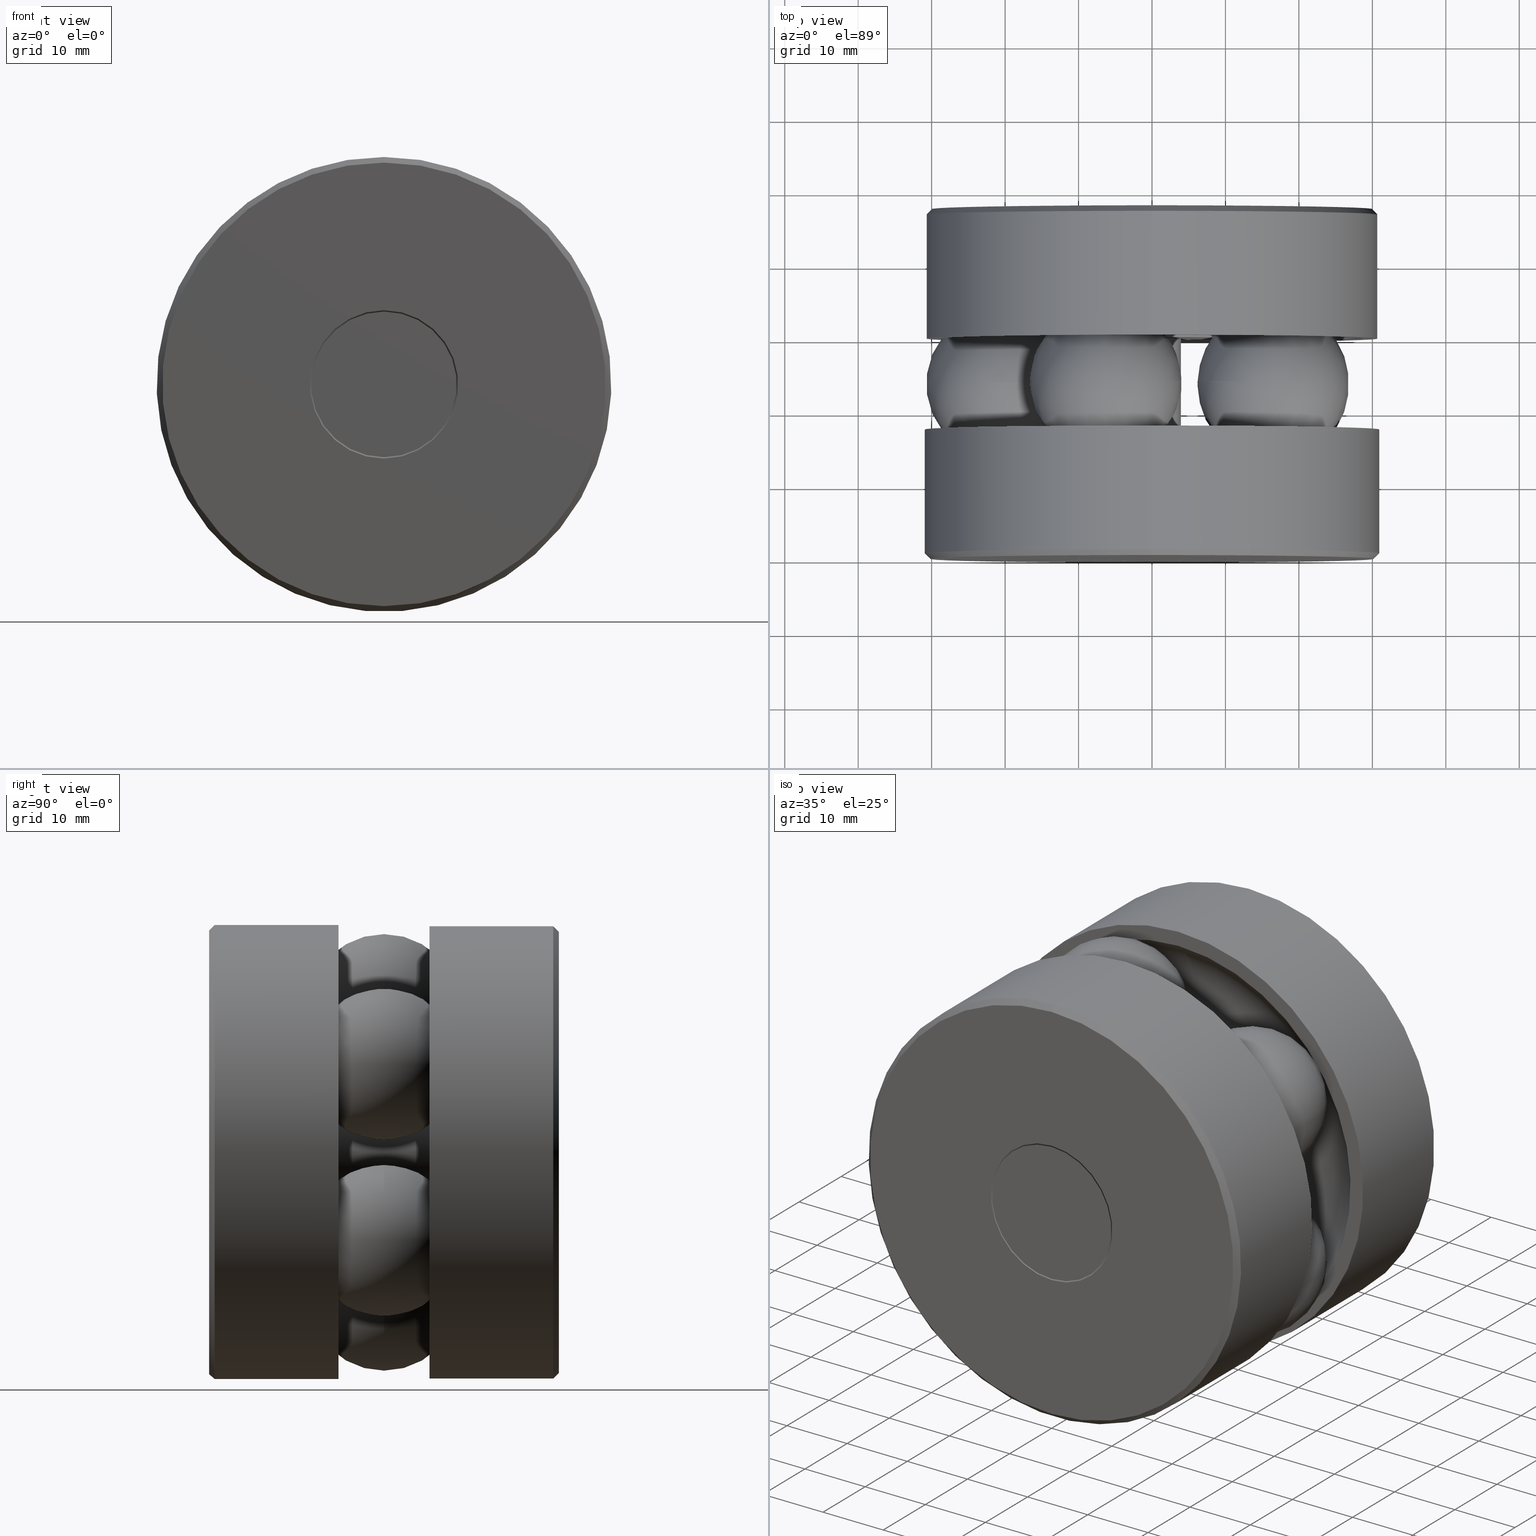
[diagram: canonical four-view strip — front | top / right | iso, engineering-drawing reading convention]
A machine part, canonical four-view strip (front | top / right | iso — engineering-drawing reading convention). The complete STEP part file that produces these views, byte-faithful:
ISO-10303-21;
HEADER;
FILE_DESCRIPTION (( 'STEP AP203' ),
    '1' );
FILE_NAME ('T-114RG_T-114RG-2007.step',
    '2016-02-04T15:34:13',
    ( '' ),
    ( '' ),
    'SwSTEP 2.0',
    'SolidWorks 2016',
    '' );
FILE_SCHEMA (( 'CONFIG_CONTROL_DESIGN' ));
ENDSEC;

DATA;
#1 = DIRECTION ( 'NONE',  ( 0.0000000000000000000, 0.0000000000000000000, 1.000000000000000000 ) ) ;
#2 = VERTEX_POINT ( 'NONE', #316 ) ;
#3 = MANIFOLD_SOLID_BREP ( 'Revolve2[1]', #539 ) ;
#4 = DIRECTION ( 'NONE',  ( 0.0000000000000000000, 0.0000000000000000000, 1.000000000000000000 ) ) ;
#5 = FACE_OUTER_BOUND ( 'NONE', #17, .T. ) ;
#6 = EDGE_LOOP ( 'NONE', ( #430 ) ) ;
#7 = EDGE_LOOP ( 'NONE', ( #245 ) ) ;
#8 = ORIENTED_EDGE ( 'NONE', *, *, #104, .T. ) ;
#9 = DIRECTION ( 'NONE',  ( 0.0000000000000000000, 0.0000000000000000000, 1.000000000000000000 ) ) ;
#10 = AXIS2_PLACEMENT_3D ( 'NONE', #218, #494, #458 ) ;
#11 = DIRECTION ( 'NONE',  ( -0.0000000000000000000, 1.000000000000000000, -0.0000000000000000000 ) ) ;
#12 = DIRECTION ( 'NONE',  ( 0.0000000000000000000, -0.0000000000000000000, -1.000000000000000000 ) ) ;
#13 = CARTESIAN_POINT ( 'NONE',  ( 0.0000000000000000000, 0.0000000000000000000, 0.0000000000000000000 ) ) ;
#14 = PERSON_AND_ORGANIZATION ( #483, #478 ) ;
#15 = CYLINDRICAL_SURFACE ( 'NONE', #488, 0.1560000000000001700 ) ;
#16 = EDGE_LOOP ( 'NONE', ( #209 ) ) ;
#17 = EDGE_LOOP ( 'NONE', ( #182 ) ) ;
#18 = ORIENTED_EDGE ( 'NONE', *, *, #459, .F. ) ;
#19 = DIRECTION ( 'NONE',  ( -0.0000000000000000000, 1.000000000000000000, -0.0000000000000000000 ) ) ;
#20 = DIRECTION ( 'NONE',  ( -0.0000000000000000000, 1.000000000000000000, -0.0000000000000000000 ) ) ;
#21 = EDGE_LOOP ( 'NONE', ( #406 ) ) ;
#22 = CARTESIAN_POINT ( 'NONE',  ( 0.0000000000000000000, 1.874999999999999800, 1.181750000000000100 ) ) ;
#23 = CC_DESIGN_PERSON_AND_ORGANIZATION_ASSIGNMENT ( #216, #513, ( #446 ) ) ;
#24 =( LENGTH_UNIT ( ) NAMED_UNIT ( * ) SI_UNIT ( $, .METRE. ) );
#25 = MECHANICAL_CONTEXT ( 'NONE', #512, 'mechanical' ) ;
#26 = VERTEX_POINT ( 'NONE', #469 ) ;
#27 = AXIS2_PLACEMENT_3D ( 'NONE', #248, #527, #291 ) ;
#28 = CIRCLE ( 'NONE', #340, 0.3974460678118633100 ) ;
#29 = ORIENTED_EDGE ( 'NONE', *, *, #432, .F. ) ;
#30 = ORIENTED_EDGE ( 'NONE', *, *, #273, .F. ) ;
#31 = PERSON_AND_ORGANIZATION_ROLE ( 'classification_officer' ) ;
#32 = ADVANCED_FACE ( 'NONE', ( #247, #148 ), #438, .T. ) ;
#33 = PERSON_AND_ORGANIZATION ( #483, #478 ) ;
#34 = CIRCLE ( 'NONE', #49, 0.1610000000000000300 ) ;
#35 = ADVANCED_FACE ( 'NONE', ( #450, #343 ), #123, .F. ) ;
#36 = CLOSED_SHELL ( 'NONE', ( #323, #442, #240, #35, #518, #515, #125, #440 ) ) ;
#37 = ORIENTED_EDGE ( 'NONE', *, *, #377, .T. ) ;
#38 = EDGE_LOOP ( 'NONE', ( #523 ) ) ;
#39 = EDGE_LOOP ( 'NONE', ( #236 ) ) ;
#40 = EDGE_CURVE ( 'NONE', #366, #366, #226, .T. ) ;
#41 = CYLINDRICAL_SURFACE ( 'NONE', #158, 0.1610000000000000300 ) ;
#42 = EDGE_LOOP ( 'NONE', ( #206 ) ) ;
#43 = ORIENTED_EDGE ( 'NONE', *, *, #186, .T. ) ;
#44 = EDGE_LOOP ( 'NONE', ( #81 ) ) ;
#45 = DIRECTION ( 'NONE',  ( 0.0000000000000000000, 0.0000000000000000000, -1.000000000000000000 ) ) ;
#46 = EDGE_LOOP ( 'NONE', ( #141 ) ) ;
#47 = DIRECTION ( 'NONE',  ( -0.0000000000000000000, 1.000000000000000000, -0.0000000000000000000 ) ) ;
#48 = DIRECTION ( 'NONE',  ( -0.0000000000000000000, 1.000000000000000000, -0.0000000000000000000 ) ) ;
#49 = AXIS2_PLACEMENT_3D ( 'NONE', #107, #380, #145 ) ;
#50 = DIRECTION ( 'NONE',  ( -0.0000000000000000000, 1.000000000000000000, -0.0000000000000000000 ) ) ;
#51 = COORDINATED_UNIVERSAL_TIME_OFFSET ( 5, 0, .BEHIND. ) ;
#52 = CIRCLE ( 'NONE', #306, 1.218750000000000000 ) ;
#53 = ORIENTED_EDGE ( 'NONE', *, *, #484, .F. ) ;
#54 = EDGE_LOOP ( 'NONE', ( #303 ) ) ;
#55 = EDGE_LOOP ( 'NONE', ( #53 ) ) ;
#56 = EDGE_LOOP ( 'NONE', ( #8 ) ) ;
#57 = DIRECTION ( 'NONE',  ( 0.0000000000000000000, 0.0000000000000000000, 1.000000000000000000 ) ) ;
#58 = SECURITY_CLASSIFICATION ( '', '', #279 ) ;
#59 = CARTESIAN_POINT ( 'NONE',  ( 0.0000000000000000000, 0.0000000000000000000, 0.0000000000000000000 ) ) ;
#60 = ORIENTED_EDGE ( 'NONE', *, *, #104, .F. ) ;
#61 = DIRECTION ( 'NONE',  ( 0.0000000000000000000, 0.0000000000000000000, 1.000000000000000000 ) ) ;
#62 = EDGE_LOOP ( 'NONE', ( #445 ) ) ;
#63 = PLANE ( 'NONE',  #213 ) ;
#64 = EDGE_LOOP ( 'NONE', ( #72 ) ) ;
#65 = AXIS2_PLACEMENT_3D ( 'NONE', #448, #487, #45 ) ;
#66 = EDGE_LOOP ( 'NONE', ( #43 ) ) ;
#67 = DIRECTION ( 'NONE',  ( 0.0000000000000000000, 0.0000000000000000000, 1.000000000000000000 ) ) ;
#68 = DIRECTION ( 'NONE',  ( 0.0000000000000000000, -1.000000000000000000, 0.0000000000000000000 ) ) ;
#69 = DIRECTION ( 'NONE',  ( 0.3090169943749582200, 0.0000000000000000000, 0.9510565162951499800 ) ) ;
#70 = CIRCLE ( 'NONE', #176, 1.211749999999999900 ) ;
#71 = EDGE_LOOP ( 'NONE', ( #355 ) ) ;
#72 = ORIENTED_EDGE ( 'NONE', *, *, #161, .F. ) ;
#73 = ORIENTED_EDGE ( 'NONE', *, *, #235, .F. ) ;
#74 = DIRECTION ( 'NONE',  ( 0.0000000000000000000, 0.0000000000000000000, 1.000000000000000000 ) ) ;
#75 = EDGE_LOOP ( 'NONE', ( #364 ) ) ;
#76 =( GEOMETRIC_REPRESENTATION_CONTEXT ( 3 ) GLOBAL_UNCERTAINTY_ASSIGNED_CONTEXT ( ( #178 ) ) GLOBAL_UNIT_ASSIGNED_CONTEXT ( ( #392, #162, #435 ) ) REPRESENTATION_CONTEXT ( 'NONE', 'WORKASPACE' ) );
#77 = CARTESIAN_POINT ( 'NONE',  ( 0.0000000000000000000, 1.875000000000000000, 0.3974460678118633100 ) ) ;
#78 = CARTESIAN_POINT ( 'NONE',  ( 0.0000000000000000000, 0.03000000000000006800, 1.218750000000000000 ) ) ;
#79 = EDGE_CURVE ( 'NONE', #461, #461, #28, .T. ) ;
#80 = FACE_OUTER_BOUND ( 'NONE', #486, .T. ) ;
#81 = ORIENTED_EDGE ( 'NONE', *, *, #299, .T. ) ;
#82 = EDGE_LOOP ( 'NONE', ( #138 ) ) ;
#83 = CLOSED_SHELL ( 'NONE', ( #477 ) ) ;
#84 = DIRECTION ( 'NONE',  ( 0.0000000000000000000, -1.000000000000000000, 0.0000000000000000000 ) ) ;
#85 = APPLICATION_CONTEXT ( 'configuration controlled 3d designs of mechanical parts and assemblies' ) ;
#86 = APPROVAL_STATUS ( 'not_yet_approved' ) ;
#87 = ADVANCED_BREP_SHAPE_REPRESENTATION ( 'T-114RG_T-114RG-2007', ( #3, #451, #121, #208, #171, #357, #294, #265, #256 ), #76 ) ;
#88 = AXIS2_PLACEMENT_3D ( 'NONE', #108, #382, #147 ) ;
#89 = ADVANCED_FACE ( 'NONE', ( #133, #238 ), #110, .T. ) ;
#90 = FACE_BOUND ( 'NONE', #391, .T. ) ;
#91 = ADVANCED_FACE ( 'NONE', ( #330, #529 ), #533, .T. ) ;
#92 = DATE_AND_TIME ( #194, #301 ) ;
#93 = FACE_BOUND ( 'NONE', #261, .T. ) ;
#94 = CC_DESIGN_PERSON_AND_ORGANIZATION_ASSIGNMENT ( #114, #31, ( #58 ) ) ;
#95 = CLOSED_SHELL ( 'NONE', ( #243 ) ) ;
#96 = EDGE_LOOP ( 'NONE', ( #462 ) ) ;
#97 = DIRECTION ( 'NONE',  ( -0.8090169943749506700, 0.0000000000000000000, -0.5877852522924684700 ) ) ;
#98 = FACE_OUTER_BOUND ( 'NONE', #457, .T. ) ;
#99 = AXIS2_PLACEMENT_3D ( 'NONE', #228, #192, #468 ) ;
#100 = DIRECTION ( 'NONE',  ( -0.0000000000000000000, 1.000000000000000000, -0.0000000000000000000 ) ) ;
#101 = PERSON_AND_ORGANIZATION ( #483, #478 ) ;
#102 = CIRCLE ( 'NONE', #88, 0.1610000000000000300 ) ;
#103 = ORIENTED_EDGE ( 'NONE', *, *, #350, .T. ) ;
#104 = EDGE_CURVE ( 'NONE', #146, #146, #322, .T. ) ;
#105 = CLOSED_SHELL ( 'NONE', ( #203 ) ) ;
#106 = DIRECTION ( 'NONE',  ( -0.0000000000000000000, 1.000000000000000000, -0.0000000000000000000 ) ) ;
#107 = CARTESIAN_POINT ( 'NONE',  ( 0.0000000000000000000, 0.2364460678118654700, 0.0000000000000000000 ) ) ;
#108 = CARTESIAN_POINT ( 'NONE',  ( 0.0000000000000000000, 0.6937500000000002000, 0.0000000000000000000 ) ) ;
#109 = VERTEX_POINT ( 'NONE', #234 ) ;
#110 = CONICAL_SURFACE ( 'NONE', #367, 0.3903749999999977500, 0.7853981633974431700 ) ;
#111 = AXIS2_PLACEMENT_3D ( 'NONE', #420, #460, #498 ) ;
#112 = PLANE ( 'NONE',  #505 ) ;
#113 = DIRECTION ( 'NONE',  ( 0.0000000000000000000, 0.0000000000000000000, 1.000000000000000000 ) ) ;
#114 = PERSON_AND_ORGANIZATION ( #483, #478 ) ;
#115 = FACE_BOUND ( 'NONE', #56, .T. ) ;
#116 = ORIENTED_EDGE ( 'NONE', *, *, #400, .T. ) ;
#117 = CARTESIAN_POINT ( 'NONE',  ( 0.0000000000000000000, -2.210274490284117400E-018, 0.3974460678118629200 ) ) ;
#118 = CC_DESIGN_DATE_AND_TIME_ASSIGNMENT ( #204, #320, ( #58 ) ) ;
#119 = APPROVAL_STATUS ( 'not_yet_approved' ) ;
#120 = AXIS2_PLACEMENT_3D ( 'NONE', #292, #48, #332 ) ;
#121 = MANIFOLD_SOLID_BREP ( 'Revolve2[3]', #36 ) ;
#122 = VERTEX_POINT ( 'NONE', #389 ) ;
#123 = CONICAL_SURFACE ( 'NONE', #290, 0.3974460678118629200, 0.7853981633974428400 ) ;
#124 = ADVANCED_FACE ( 'NONE', ( #425, #5 ), #202, .T. ) ;
#125 = ADVANCED_FACE ( 'NONE', ( #212, #98 ), #516, .F. ) ;
#126 = CALENDAR_DATE ( 2016, 4, 2 ) ;
#127 = AXIS2_PLACEMENT_3D ( 'NONE', #159, #431, #193 ) ;
#128 = CYLINDRICAL_SURFACE ( 'NONE', #10, 1.218750000000000000 ) ;
#129 = ORIENTED_EDGE ( 'NONE', *, *, #400, .F. ) ;
#130 = EDGE_CURVE ( 'NONE', #26, #26, #411, .T. ) ;
#131 = CARTESIAN_POINT ( 'NONE',  ( 0.0000000000000000000, 1.181249999999999900, 0.0000000000000000000 ) ) ;
#132 = VERTEX_POINT ( 'NONE', #22 ) ;
#133 = FACE_BOUND ( 'NONE', #271, .T. ) ;
#134 = CARTESIAN_POINT ( 'NONE',  ( 0.6500451549802728200, 0.9375000000000000000, 0.4722854502169983600 ) ) ;
#135 = AXIS2_PLACEMENT_3D ( 'NONE', #59, #220, #419 ) ;
#136 = CARTESIAN_POINT ( 'NONE',  ( 0.0000000000000000000, 1.874999999999999800, 0.0000000000000000000 ) ) ;
#137 = DIRECTION ( 'NONE',  ( 0.0000000000000000000, 0.0000000000000000000, -1.000000000000000000 ) ) ;
#138 = ORIENTED_EDGE ( 'NONE', *, *, #541, .F. ) ;
#139 = DATE_AND_TIME ( #242, #347 ) ;
#140 = FACE_OUTER_BOUND ( 'NONE', #62, .T. ) ;
#141 = ORIENTED_EDGE ( 'NONE', *, *, #130, .F. ) ;
#142 = DIRECTION ( 'NONE',  ( -0.8090169943749422300, 0.0000000000000000000, 0.5877852522924802400 ) ) ;
#143 = APPROVAL ( #86, 'UNSPECIFIED' ) ;
#144 = DIRECTION ( 'NONE',  ( 0.0000000000000000000, -1.000000000000000000, 0.0000000000000000000 ) ) ;
#145 = DIRECTION ( 'NONE',  ( 0.0000000000000000000, 0.0000000000000000000, 1.000000000000000000 ) ) ;
#146 = VERTEX_POINT ( 'NONE', #387 ) ;
#147 = DIRECTION ( 'NONE',  ( 0.0000000000000000000, 0.0000000000000000000, 1.000000000000000000 ) ) ;
#148 = FACE_BOUND ( 'NONE', #282, .T. ) ;
#149 = AXIS2_PLACEMENT_3D ( 'NONE', #369, #407, #177 ) ;
#150 = CARTESIAN_POINT ( 'NONE',  ( 0.0000000000000000000, 0.6937500000000000900, 0.0000000000000000000 ) ) ;
#151 = CARTESIAN_POINT ( 'NONE',  ( -0.4784999999999997600, 1.181249999999999900, 0.0000000000000000000 ) ) ;
#152 = ORIENTED_EDGE ( 'NONE', *, *, #432, .T. ) ;
#153 = DIRECTION ( 'NONE',  ( 0.0000000000000000000, -1.000000000000000000, 0.0000000000000000000 ) ) ;
#154 = APPROVAL_DATE_TIME ( #251, #338 ) ;
#155 = TOROIDAL_SURFACE ( 'NONE', #439, 0.8034999999999997700, 0.4062499999999999400 ) ;
#156 = EDGE_LOOP ( 'NONE', ( #60 ) ) ;
#157 = DIRECTION ( 'NONE',  ( -0.0000000000000000000, 1.000000000000000000, -0.0000000000000000000 ) ) ;
#158 = AXIS2_PLACEMENT_3D ( 'NONE', #230, #504, #113 ) ;
#159 = CARTESIAN_POINT ( 'NONE',  ( 0.0000000000000000000, 0.2343750000000001100, 0.0000000000000000000 ) ) ;
#160 = CARTESIAN_POINT ( 'NONE',  ( 0.0000000000000000000, 0.6937500000000002000, 0.1610000000000000300 ) ) ;
#161 = EDGE_CURVE ( 'NONE', #449, #449, #502, .T. ) ;
#162 =( NAMED_UNIT ( * ) PLANE_ANGLE_UNIT ( ) SI_UNIT ( $, .RADIAN. ) );
#163 = CIRCLE ( 'NONE', #127, 0.1560000000000000300 ) ;
#164 = ORIENTED_EDGE ( 'NONE', *, *, #377, .F. ) ;
#165 = PERSON_AND_ORGANIZATION_ROLE ( 'creator' ) ;
#166 = ADVANCED_FACE ( 'NONE', ( #293, #395 ), #180, .T. ) ;
#167 = EDGE_LOOP ( 'NONE', ( #337 ) ) ;
#168 = APPROVAL_PERSON_ORGANIZATION ( #268, #338, #393 ) ;
#169 = ADVANCED_FACE ( 'NONE', ( #308, #90 ), #370, .T. ) ;
#170 = FACE_OUTER_BOUND ( 'NONE', #418, .T. ) ;
#171 = MANIFOLD_SOLID_BREP ( 'BALLS[1]', #105 ) ;
#172 = ORIENTED_EDGE ( 'NONE', *, *, #509, .F. ) ;
#173 = CC_DESIGN_APPROVAL ( #143, ( #58 ) ) ;
#174 = EDGE_LOOP ( 'NONE', ( #30 ) ) ;
#175 = DIRECTION ( 'NONE',  ( 0.0000000000000000000, 0.0000000000000000000, 1.000000000000000000 ) ) ;
#176 = AXIS2_PLACEMENT_3D ( 'NONE', #295, #50, #333 ) ;
#177 = DIRECTION ( 'NONE',  ( 0.0000000000000000000, 0.0000000000000000000, 1.000000000000000000 ) ) ;
#178 = UNCERTAINTY_MEASURE_WITH_UNIT (LENGTH_MEASURE( 1.000000000000000100E-005 ), #392, 'distance_accuracy_value', 'NONE');
#179 = DIRECTION ( 'NONE',  ( 0.3090169943749447300, 0.0000000000000000000, -0.9510565162951544200 ) ) ;
#180 = CONICAL_SURFACE ( 'NONE', #65, 0.1560000000000000300, 0.7853981633974425100 ) ;
#181 = DIRECTION ( 'NONE',  ( 0.0000000000000000000, 0.0000000000000000000, 1.000000000000000000 ) ) ;
#182 = ORIENTED_EDGE ( 'NONE', *, *, #207, .F. ) ;
#183 = DIRECTION ( 'NONE',  ( -0.0000000000000000000, 1.000000000000000000, -0.0000000000000000000 ) ) ;
#184 = CARTESIAN_POINT ( 'NONE',  ( 0.6500451549802659400, 0.9375000000000000000, -0.4722854502170077400 ) ) ;
#185 = CIRCLE ( 'NONE', #397, 0.3903749999999977500 ) ;
#186 = EDGE_CURVE ( 'NONE', #342, #342, #283, .T. ) ;
#187 = EDGE_LOOP ( 'NONE', ( #349 ) ) ;
#188 = DIRECTION ( 'NONE',  ( 0.0000000000000000000, -0.0000000000000000000, -1.000000000000000000 ) ) ;
#189 = DIRECTION ( 'NONE',  ( 0.0000000000000000000, 0.0000000000000000000, 1.000000000000000000 ) ) ;
#190 = CARTESIAN_POINT ( 'NONE',  ( -0.2482951549802788500, 0.9375000000000000000, -0.7641739108431528900 ) ) ;
#191 = SPHERICAL_SURFACE ( 'NONE', #225, 0.4062500000000000600 ) ;
#192 = DIRECTION ( 'NONE',  ( -0.0000000000000000000, 1.000000000000000000, 0.0000000000000000000 ) ) ;
#193 = DIRECTION ( 'NONE',  ( 0.0000000000000000000, 0.0000000000000000000, 1.000000000000000000 ) ) ;
#194 = CALENDAR_DATE ( 2016, 4, 2 ) ;
#195 = FACE_OUTER_BOUND ( 'NONE', #46, .T. ) ;
#196 = EDGE_LOOP ( 'NONE', ( #172 ) ) ;
#197 = CARTESIAN_POINT ( 'NONE',  ( 0.0000000000000000000, 0.6937499999999999800, 1.128499999999999600 ) ) ;
#198 = CC_DESIGN_SECURITY_CLASSIFICATION ( #58, ( #446 ) ) ;
#199 = APPROVAL_STATUS ( 'not_yet_approved' ) ;
#200 = AXIS2_PLACEMENT_3D ( 'NONE', #134, #530, #97 ) ;
#201 = ADVANCED_FACE ( 'NONE', ( ), #479, .T. ) ;
#202 = CYLINDRICAL_SURFACE ( 'NONE', #526, 1.211749999999999900 ) ;
#203 = ADVANCED_FACE ( 'NONE', ( ), #191, .T. ) ;
#204 = DATE_AND_TIME ( #312, #415 ) ;
#205 = FACE_OUTER_BOUND ( 'NONE', #55, .T. ) ;
#206 = ORIENTED_EDGE ( 'NONE', *, *, #207, .T. ) ;
#207 = EDGE_CURVE ( 'NONE', #237, #237, #70, .T. ) ;
#208 = MANIFOLD_SOLID_BREP ( 'Revolve3', #95 ) ;
#209 = ORIENTED_EDGE ( 'NONE', *, *, #273, .T. ) ;
#210 = CARTESIAN_POINT ( 'NONE',  ( -0.3974460678118629200, -9.670517702963630200E-017, 0.0000000000000000000 ) ) ;
#211 = VERTEX_POINT ( 'NONE', #471 ) ;
#212 = FACE_OUTER_BOUND ( 'NONE', #473, .T. ) ;
#213 = AXIS2_PLACEMENT_3D ( 'NONE', #341, #422, #188 ) ;
#214 = DIRECTION ( 'NONE',  ( 0.0000000000000000000, -0.0000000000000000000, -1.000000000000000000 ) ) ;
#215 = PRODUCT_DEFINITION_SHAPE ( 'NONE', 'NONE',  #313 ) ;
#216 = PERSON_AND_ORGANIZATION ( #483, #478 ) ;
#217 = FACE_BOUND ( 'NONE', #44, .T. ) ;
#218 = CARTESIAN_POINT ( 'NONE',  ( 0.0000000000000000000, 0.0000000000000000000, 0.0000000000000000000 ) ) ;
#219 = ORIENTED_EDGE ( 'NONE', *, *, #79, .F. ) ;
#220 = DIRECTION ( 'NONE',  ( -0.0000000000000000000, 1.000000000000000000, -0.0000000000000000000 ) ) ;
#221 = PRODUCT_RELATED_PRODUCT_CATEGORY ( 'detail', '', ( #519 ) ) ;
#222 = CARTESIAN_POINT ( 'NONE',  ( 0.0000000000000000000, 1.875000000000000000, 0.0000000000000000000 ) ) ;
#223 = PLANE ( 'NONE',  #269 ) ;
#224 = VERTEX_POINT ( 'NONE', #117 ) ;
#225 = AXIS2_PLACEMENT_3D ( 'NONE', #250, #412, #179 ) ;
#226 = CIRCLE ( 'NONE', #317, 0.1610000000000003100 ) ;
#227 = DIRECTION ( 'NONE',  ( 0.0000000000000000000, 0.0000000000000000000, 1.000000000000000000 ) ) ;
#228 = CARTESIAN_POINT ( 'NONE',  ( -0.4784999999999997000, 0.6937500000000002000, 0.0000000000000000000 ) ) ;
#229 = LOCAL_TIME ( 10, 34, 13.00000000000000000, #334 ) ;
#230 = CARTESIAN_POINT ( 'NONE',  ( 0.0000000000000000000, 0.0000000000000000000, 0.0000000000000000000 ) ) ;
#231 = CIRCLE ( 'NONE', #517, 0.3974460678118629200 ) ;
#232 = EDGE_LOOP ( 'NONE', ( #103 ) ) ;
#233 = CARTESIAN_POINT ( 'NONE',  ( 0.0000000000000000000, 1.181249999999999900, 1.128499999999999600 ) ) ;
#234 = CARTESIAN_POINT ( 'NONE',  ( 0.0000000000000000000, 0.0000000000000000000, 0.3903749999999974200 ) ) ;
#235 = EDGE_CURVE ( 'NONE', #132, #132, #385, .T. ) ;
#236 = ORIENTED_EDGE ( 'NONE', *, *, #40, .F. ) ;
#237 = VERTEX_POINT ( 'NONE', #274 ) ;
#238 = FACE_OUTER_BOUND ( 'NONE', #315, .T. ) ;
#239 = PERSON_AND_ORGANIZATION_ROLE ( 'creator' ) ;
#240 = ADVANCED_FACE ( 'NONE', ( #270, #373 ), #371, .T. ) ;
#241 = AXIS2_PLACEMENT_3D ( 'NONE', #150, #424, #189 ) ;
#242 = CALENDAR_DATE ( 2016, 4, 2 ) ;
#243 = ADVANCED_FACE ( 'NONE', ( ), #363, .T. ) ;
#244 = CIRCLE ( 'NONE', #463, 1.188750000000000000 ) ;
#245 = ORIENTED_EDGE ( 'NONE', *, *, #299, .F. ) ;
#246 = EDGE_CURVE ( 'NONE', #2, #2, #52, .T. ) ;
#247 = FACE_OUTER_BOUND ( 'NONE', #42, .T. ) ;
#248 = CARTESIAN_POINT ( 'NONE',  ( 0.0000000000000000000, 1.181249999999999900, 0.0000000000000000000 ) ) ;
#249 = AXIS2_PLACEMENT_3D ( 'NONE', #136, #413, #181 ) ;
#250 = CARTESIAN_POINT ( 'NONE',  ( -0.2482951549802680800, 0.9375000000000000000, 0.7641739108431565600 ) ) ;
#251 = DATE_AND_TIME ( #362, #464 ) ;
#252 = FACE_OUTER_BOUND ( 'NONE', #64, .T. ) ;
#253 = CARTESIAN_POINT ( 'NONE',  ( 0.0000000000000000000, 1.181249999999999900, 0.0000000000000000000 ) ) ;
#254 = EDGE_LOOP ( 'NONE', ( #467 ) ) ;
#255 = CARTESIAN_POINT ( 'NONE',  ( 0.0000000000000000000, 0.03000000000000006800, 0.0000000000000000000 ) ) ;
#256 = AXIS2_PLACEMENT_3D ( 'NONE', #311, #353, #278 ) ;
#257 = CARTESIAN_POINT ( 'NONE',  ( 0.0000000000000000000, -1.912000795689885100E-016, 0.0000000000000000000 ) ) ;
#258 = CARTESIAN_POINT ( 'NONE',  ( 0.0000000000000000000, -2.210274490284117400E-018, 0.0000000000000000000 ) ) ;
#259 = AXIS2_PLACEMENT_3D ( 'NONE', #262, #68, #525 ) ;
#260 = FACE_OUTER_BOUND ( 'NONE', #38, .T. ) ;
#261 = EDGE_LOOP ( 'NONE', ( #29 ) ) ;
#262 = CARTESIAN_POINT ( 'NONE',  ( 0.0000000000000000000, 1.874999999999999800, 0.0000000000000000000 ) ) ;
#263 = DIRECTION ( 'NONE',  ( 0.0000000000000000000, 0.0000000000000000000, 1.000000000000000000 ) ) ;
#264 = DIRECTION ( 'NONE',  ( -0.0000000000000000000, 1.000000000000000000, 0.0000000000000000000 ) ) ;
#265 = MANIFOLD_SOLID_BREP ( 'BALLS[4]', #83 ) ;
#266 = DIRECTION ( 'NONE',  ( -0.0000000000000000000, 1.000000000000000000, -0.0000000000000000000 ) ) ;
#267 = CARTESIAN_POINT ( 'NONE',  ( 0.0000000000000000000, 1.875000000000000000, 0.0000000000000000000 ) ) ;
#268 = PERSON_AND_ORGANIZATION ( #483, #478 ) ;
#269 = AXIS2_PLACEMENT_3D ( 'NONE', #222, #264, #4 ) ;
#270 = FACE_BOUND ( 'NONE', #254, .T. ) ;
#271 = EDGE_LOOP ( 'NONE', ( #404 ) ) ;
#272 = CARTESIAN_POINT ( 'NONE',  ( 0.0000000000000000000, 1.638553932188134800, 0.1610000000000003100 ) ) ;
#273 = EDGE_CURVE ( 'NONE', #437, #437, #490, .T. ) ;
#274 = CARTESIAN_POINT ( 'NONE',  ( 0.0000000000000000000, 1.844999999999999300, 1.211749999999999900 ) ) ;
#275 = CARTESIAN_POINT ( 'NONE',  ( 0.0000000000000000000, 0.2343750000000001100, 0.1560000000000000300 ) ) ;
#276 = FACE_OUTER_BOUND ( 'NONE', #481, .T. ) ;
#277 = ORIENTED_EDGE ( 'NONE', *, *, #246, .T. ) ;
#278 = DIRECTION ( 'NONE',  ( 1.000000000000000000, 0.0000000000000000000, 0.0000000000000000000 ) ) ;
#279 = SECURITY_CLASSIFICATION_LEVEL ( 'unclassified' ) ;
#280 = DIRECTION ( 'NONE',  ( -0.0000000000000000000, 1.000000000000000000, -0.0000000000000000000 ) ) ;
#281 = ADVANCED_FACE ( 'NONE', ( #170, #252 ), #155, .F. ) ;
#282 = EDGE_LOOP ( 'NONE', ( #73 ) ) ;
#283 = CIRCLE ( 'NONE', #120, 1.211749999999999900 ) ;
#284 = EDGE_LOOP ( 'NONE', ( #164 ) ) ;
#285 = ADVANCED_FACE ( 'NONE', ( #348, #466 ), #15, .T. ) ;
#286 = CC_DESIGN_PERSON_AND_ORGANIZATION_ASSIGNMENT ( #372, #319, ( #519 ) ) ;
#287 = DIMENSIONAL_EXPONENTS ( 1.000000000000000000, 0.0000000000000000000, 0.0000000000000000000, 0.0000000000000000000, 0.0000000000000000000, 0.0000000000000000000, 0.0000000000000000000 ) ;
#288 = SPHERICAL_SURFACE ( 'NONE', #454, 0.4062500000000000600 ) ;
#289 = ORIENTED_EDGE ( 'NONE', *, *, #130, .T. ) ;
#290 = AXIS2_PLACEMENT_3D ( 'NONE', #398, #144, #137 ) ;
#291 = DIRECTION ( 'NONE',  ( 0.0000000000000000000, 0.0000000000000000000, 1.000000000000000000 ) ) ;
#292 = CARTESIAN_POINT ( 'NONE',  ( 0.0000000000000000000, 1.181249999999999900, 0.0000000000000000000 ) ) ;
#293 = FACE_OUTER_BOUND ( 'NONE', #96, .T. ) ;
#294 = MANIFOLD_SOLID_BREP ( 'BALLS[3]', #510 ) ;
#295 = CARTESIAN_POINT ( 'NONE',  ( 0.0000000000000000000, 1.844999999999999300, 0.0000000000000000000 ) ) ;
#296 = AXIS2_PLACEMENT_3D ( 'NONE', #501, #266, #9 ) ;
#297 = DIRECTION ( 'NONE',  ( 1.000000000000000000, 0.0000000000000000000, 0.0000000000000000000 ) ) ;
#298 = DIRECTION ( 'NONE',  ( 0.0000000000000000000, 0.0000000000000000000, 1.000000000000000000 ) ) ;
#299 = EDGE_CURVE ( 'NONE', #329, #329, #244, .T. ) ;
#300 = DIRECTION ( 'NONE',  ( 0.0000000000000000000, 0.0000000000000000000, 1.000000000000000000 ) ) ;
#301 = LOCAL_TIME ( 10, 34, 13.00000000000000000, #402 ) ;
#302 = FACE_OUTER_BOUND ( 'NONE', #381, .T. ) ;
#303 = ORIENTED_EDGE ( 'NONE', *, *, #186, .F. ) ;
#304 = DIRECTION ( 'NONE',  ( 0.0000000000000000000, 0.0000000000000000000, 1.000000000000000000 ) ) ;
#305 = DIRECTION ( 'NONE',  ( -0.0000000000000000000, 1.000000000000000000, -0.0000000000000000000 ) ) ;
#306 = AXIS2_PLACEMENT_3D ( 'NONE', #414, #183, #456 ) ;
#307 = DIRECTION ( 'NONE',  ( -0.0000000000000000000, 1.000000000000000000, 0.0000000000000000000 ) ) ;
#308 = FACE_OUTER_BOUND ( 'NONE', #21, .T. ) ;
#309 = DIRECTION ( 'NONE',  ( 0.0000000000000000000, 0.0000000000000000000, 1.000000000000000000 ) ) ;
#310 = DIRECTION ( 'NONE',  ( -0.0000000000000000000, 1.000000000000000000, -0.0000000000000000000 ) ) ;
#311 = CARTESIAN_POINT ( 'NONE',  ( 0.0000000000000000000, 0.0000000000000000000, 0.0000000000000000000 ) ) ;
#312 = CALENDAR_DATE ( 2016, 4, 2 ) ;
#313 = PRODUCT_DEFINITION ( 'UNKNOWN', '', #446, #441 ) ;
#314 = CIRCLE ( 'NONE', #241, 0.4784999999999998100 ) ;
#315 = EDGE_LOOP ( 'NONE', ( #18 ) ) ;
#316 = CARTESIAN_POINT ( 'NONE',  ( 0.0000000000000000000, 0.6937499999999999800, 1.218750000000000000 ) ) ;
#317 = AXIS2_PLACEMENT_3D ( 'NONE', #434, #20, #1 ) ;
#318 = CARTESIAN_POINT ( 'NONE',  ( 0.0000000000000000000, 1.875000000000000000, 0.0000000000000000000 ) ) ;
#319 = PERSON_AND_ORGANIZATION_ROLE ( 'design_owner' ) ;
#320 = DATE_TIME_ROLE ( 'classification_date' ) ;
#321 = VERTEX_POINT ( 'NONE', #197 ) ;
#322 = CIRCLE ( 'NONE', #421, 0.1610000000000001400 ) ;
#323 = ADVANCED_FACE ( 'NONE', ( #455, #140 ), #128, .T. ) ;
#324 = ADVANCED_FACE ( 'NONE', ( ), #538, .T. ) ;
#325 = PERSON_AND_ORGANIZATION ( #483, #478 ) ;
#326 = FACE_OUTER_BOUND ( 'NONE', #187, .T. ) ;
#327 = EDGE_CURVE ( 'NONE', #224, #224, #231, .T. ) ;
#328 = EDGE_LOOP ( 'NONE', ( #499 ) ) ;
#329 = VERTEX_POINT ( 'NONE', #352 ) ;
#330 = FACE_BOUND ( 'NONE', #75, .T. ) ;
#331 = AXIS2_PLACEMENT_3D ( 'NONE', #210, #452, #214 ) ;
#332 = DIRECTION ( 'NONE',  ( 0.0000000000000000000, 0.0000000000000000000, 1.000000000000000000 ) ) ;
#333 = DIRECTION ( 'NONE',  ( 0.0000000000000000000, 0.0000000000000000000, 1.000000000000000000 ) ) ;
#334 = COORDINATED_UNIVERSAL_TIME_OFFSET ( 5, 0, .BEHIND. ) ;
#335 = FACE_OUTER_BOUND ( 'NONE', #71, .T. ) ;
#336 = CARTESIAN_POINT ( 'NONE',  ( 0.0000000000000000000, 0.0000000000000000000, 0.0000000000000000000 ) ) ;
#337 = ORIENTED_EDGE ( 'NONE', *, *, #327, .F. ) ;
#338 = APPROVAL ( #119, 'UNSPECIFIED' ) ;
#339 = CARTESIAN_POINT ( 'NONE',  ( 0.0000000000000000000, 0.0000000000000000000, 0.0000000000000000000 ) ) ;
#340 = AXIS2_PLACEMENT_3D ( 'NONE', #318, #47, #61 ) ;
#341 = CARTESIAN_POINT ( 'NONE',  ( -0.3903749999999974200, 0.0000000000000000000, 0.0000000000000000000 ) ) ;
#342 = VERTEX_POINT ( 'NONE', #507 ) ;
#343 = FACE_OUTER_BOUND ( 'NONE', #167, .T. ) ;
#344 = PLANE ( 'NONE',  #374 ) ;
#345 = CARTESIAN_POINT ( 'NONE',  ( 0.0000000000000000000, 0.03000000000000006800, 0.0000000000000000000 ) ) ;
#346 = AXIS2_PLACEMENT_3D ( 'NONE', #345, #305, #227 ) ;
#347 = LOCAL_TIME ( 10, 34, 13.00000000000000000, #453 ) ;
#348 = FACE_OUTER_BOUND ( 'NONE', #328, .T. ) ;
#349 = ORIENTED_EDGE ( 'NONE', *, *, #459, .T. ) ;
#350 = EDGE_CURVE ( 'NONE', #122, #122, #34, .T. ) ;
#351 = CARTESIAN_POINT ( 'NONE',  ( 0.0000000000000000000, 1.875000000000000000, 0.0000000000000000000 ) ) ;
#352 = CARTESIAN_POINT ( 'NONE',  ( 0.0000000000000000000, -1.912000795689885100E-016, 1.188750000000000000 ) ) ;
#353 = DIRECTION ( 'NONE',  ( 0.0000000000000000000, 0.0000000000000000000, 1.000000000000000000 ) ) ;
#354 = SHAPE_DEFINITION_REPRESENTATION ( #215, #87 ) ;
#355 = ORIENTED_EDGE ( 'NONE', *, *, #79, .T. ) ;
#356 = APPLICATION_PROTOCOL_DEFINITION ( 'international standard', 'config_control_design', 1994, #85 ) ;
#357 = MANIFOLD_SOLID_BREP ( 'BALLS[2]', #375 ) ;
#358 = APPROVAL_ROLE ( '' ) ;
#359 = AXIS2_PLACEMENT_3D ( 'NONE', #532, #534, #297 ) ;
#360 = ADVANCED_FACE ( 'NONE', ( #429, #444 ), #521, .F. ) ;
#361 = ADVANCED_FACE ( 'NONE', ( #335, #416 ), #508, .F. ) ;
#362 = CALENDAR_DATE ( 2016, 4, 2 ) ;
#363 = SPHERICAL_SURFACE ( 'NONE', #359, 0.4062500000000000600 ) ;
#364 = ORIENTED_EDGE ( 'NONE', *, *, #161, .T. ) ;
#365 = CC_DESIGN_APPROVAL ( #338, ( #313 ) ) ;
#366 = VERTEX_POINT ( 'NONE', #272 ) ;
#367 = AXIS2_PLACEMENT_3D ( 'NONE', #351, #106, #492 ) ;
#368 = CLOSED_SHELL ( 'NONE', ( #361, #360, #480, #281, #91, #124, #32, #169 ) ) ;
#369 = CARTESIAN_POINT ( 'NONE',  ( -0.3974460678118633100, 1.875000000000000000, 0.0000000000000000000 ) ) ;
#370 = PLANE ( 'NONE',  #149 ) ;
#371 = PLANE ( 'NONE',  #331 ) ;
#372 = PERSON_AND_ORGANIZATION ( #483, #478 ) ;
#373 = FACE_OUTER_BOUND ( 'NONE', #7, .T. ) ;
#374 = AXIS2_PLACEMENT_3D ( 'NONE', #383, #307, #67 ) ;
#375 = CLOSED_SHELL ( 'NONE', ( #201 ) ) ;
#376 = DIRECTION ( 'NONE',  ( 0.0000000000000000000, 0.0000000000000000000, 1.000000000000000000 ) ) ;
#377 = EDGE_CURVE ( 'NONE', #528, #528, #102, .T. ) ;
#378 = DIRECTION ( 'NONE',  ( 0.5877852522924802400, -0.0000000000000000000, 0.8090169943749422300 ) ) ;
#379 = CIRCLE ( 'NONE', #482, 0.3903749999999974200 ) ;
#380 = DIRECTION ( 'NONE',  ( -0.0000000000000000000, 1.000000000000000000, -0.0000000000000000000 ) ) ;
#381 = EDGE_LOOP ( 'NONE', ( #277 ) ) ;
#382 = DIRECTION ( 'NONE',  ( -0.0000000000000000000, 1.000000000000000000, -0.0000000000000000000 ) ) ;
#383 = CARTESIAN_POINT ( 'NONE',  ( -1.218750000000000000, 0.6937499999999999800, 0.0000000000000000000 ) ) ;
#384 = AXIS2_PLACEMENT_3D ( 'NONE', #255, #536, #298 ) ;
#385 = CIRCLE ( 'NONE', #249, 1.181750000000000100 ) ;
#386 = CARTESIAN_POINT ( 'NONE',  ( 0.0000000000000000000, 1.640625000000000200, 0.0000000000000000000 ) ) ;
#387 = CARTESIAN_POINT ( 'NONE',  ( 0.0000000000000000000, 1.181249999999999900, 0.1610000000000001400 ) ) ;
#388 = CC_DESIGN_PERSON_AND_ORGANIZATION_ASSIGNMENT ( #33, #165, ( #313 ) ) ;
#389 = CARTESIAN_POINT ( 'NONE',  ( 0.0000000000000000000, 0.2364460678118654700, 0.1610000000000000300 ) ) ;
#390 = FACE_OUTER_BOUND ( 'NONE', #174, .T. ) ;
#391 = EDGE_LOOP ( 'NONE', ( #219 ) ) ;
#392 =( CONVERSION_BASED_UNIT ( 'INCH', #394 ) LENGTH_UNIT ( ) NAMED_UNIT ( #287 ) );
#393 = APPROVAL_ROLE ( '' ) ;
#394 = LENGTH_MEASURE_WITH_UNIT ( LENGTH_MEASURE( 0.02539999999999999900 ), #24 );
#395 = FACE_BOUND ( 'NONE', #82, .T. ) ;
#396 = ADVANCED_FACE ( 'NONE', ( #205 ), #63, .T. ) ;
#397 = AXIS2_PLACEMENT_3D ( 'NONE', #267, #11, #309 ) ;
#398 = CARTESIAN_POINT ( 'NONE',  ( 0.0000000000000000000, -2.210274490284117400E-018, 0.0000000000000000000 ) ) ;
#399 = ADVANCED_FACE ( 'NONE', ( #326 ), #223, .T. ) ;
#400 = EDGE_CURVE ( 'NONE', #423, #423, #314, .T. ) ;
#401 = DIRECTION ( 'NONE',  ( 0.0000000000000000000, 0.0000000000000000000, 1.000000000000000000 ) ) ;
#402 = COORDINATED_UNIVERSAL_TIME_OFFSET ( 5, 0, .BEHIND. ) ;
#403 = CIRCLE ( 'NONE', #296, 1.128499999999999600 ) ;
#404 = ORIENTED_EDGE ( 'NONE', *, *, #509, .T. ) ;
#405 = DIRECTION ( 'NONE',  ( -0.0000000000000000000, 1.000000000000000000, -0.0000000000000000000 ) ) ;
#406 = ORIENTED_EDGE ( 'NONE', *, *, #235, .T. ) ;
#407 = DIRECTION ( 'NONE',  ( -0.0000000000000000000, 1.000000000000000000, 0.0000000000000000000 ) ) ;
#408 = VERTEX_POINT ( 'NONE', #275 ) ;
#409 = AXIS2_PLACEMENT_3D ( 'NONE', #184, #378, #142 ) ;
#410 = DIRECTION ( 'NONE',  ( 0.0000000000000000000, 0.0000000000000000000, 1.000000000000000000 ) ) ;
#411 = CIRCLE ( 'NONE', #500, 0.4784999999999997000 ) ;
#412 = DIRECTION ( 'NONE',  ( -0.9510565162951544200, 0.0000000000000000000, -0.3090169943749447300 ) ) ;
#413 = DIRECTION ( 'NONE',  ( -0.0000000000000000000, 1.000000000000000000, -0.0000000000000000000 ) ) ;
#414 = CARTESIAN_POINT ( 'NONE',  ( 0.0000000000000000000, 0.6937499999999999800, 0.0000000000000000000 ) ) ;
#415 = LOCAL_TIME ( 10, 34, 13.00000000000000000, #520 ) ;
#416 = FACE_BOUND ( 'NONE', #39, .T. ) ;
#417 = CC_DESIGN_DATE_AND_TIME_ASSIGNMENT ( #139, #436, ( #313 ) ) ;
#418 = EDGE_LOOP ( 'NONE', ( #289 ) ) ;
#419 = DIRECTION ( 'NONE',  ( 0.0000000000000000000, 0.0000000000000000000, 1.000000000000000000 ) ) ;
#420 = CARTESIAN_POINT ( 'NONE',  ( 0.0000000000000000000, 1.638553932188134800, 0.0000000000000000000 ) ) ;
#421 = AXIS2_PLACEMENT_3D ( 'NONE', #253, #19, #410 ) ;
#422 = DIRECTION ( 'NONE',  ( 0.0000000000000000000, -1.000000000000000000, 0.0000000000000000000 ) ) ;
#423 = VERTEX_POINT ( 'NONE', #433 ) ;
#424 = DIRECTION ( 'NONE',  ( -0.0000000000000000000, 1.000000000000000000, -0.0000000000000000000 ) ) ;
#425 = FACE_OUTER_BOUND ( 'NONE', #66, .T. ) ;
#426 = DIRECTION ( 'NONE',  ( 0.0000000000000000000, -0.0000000000000000000, -1.000000000000000000 ) ) ;
#427 = DIRECTION ( 'NONE',  ( 0.0000000000000000000, 0.0000000000000000000, 1.000000000000000000 ) ) ;
#428 = APPROVAL_DATE_TIME ( #537, #470 ) ;
#429 = FACE_OUTER_BOUND ( 'NONE', #6, .T. ) ;
#430 = ORIENTED_EDGE ( 'NONE', *, *, #40, .T. ) ;
#431 = DIRECTION ( 'NONE',  ( -0.0000000000000000000, 1.000000000000000000, -0.0000000000000000000 ) ) ;
#432 = EDGE_CURVE ( 'NONE', #321, #321, #403, .T. ) ;
#433 = CARTESIAN_POINT ( 'NONE',  ( 0.0000000000000000000, 0.6937500000000000900, 0.4784999999999998100 ) ) ;
#434 = CARTESIAN_POINT ( 'NONE',  ( 0.0000000000000000000, 1.638553932188134800, 0.0000000000000000000 ) ) ;
#435 =( NAMED_UNIT ( * ) SI_UNIT ( $, .STERADIAN. ) SOLID_ANGLE_UNIT ( ) );
#436 = DATE_TIME_ROLE ( 'creation_date' ) ;
#437 = VERTEX_POINT ( 'NONE', #78 ) ;
#438 = CONICAL_SURFACE ( 'NONE', #259, 1.181750000000000100, 0.7853981633974391800 ) ;
#439 = AXIS2_PLACEMENT_3D ( 'NONE', #493, #491, #57 ) ;
#440 = ADVANCED_FACE ( 'NONE', ( #302, #93 ), #344, .T. ) ;
#441 = DESIGN_CONTEXT ( 'detailed design', #85, 'design' ) ;
#442 = ADVANCED_FACE ( 'NONE', ( #217, #390 ), #485, .T. ) ;
#443 = APPROVAL_PERSON_ORGANIZATION ( #14, #470, #476 ) ;
#444 = FACE_OUTER_BOUND ( 'NONE', #156, .T. ) ;
#445 = ORIENTED_EDGE ( 'NONE', *, *, #246, .F. ) ;
#446 = PRODUCT_DEFINITION_FORMATION_WITH_SPECIFIED_SOURCE ( 'ANY', '', #519, .NOT_KNOWN. ) ;
#447 = AXIS2_PLACEMENT_3D ( 'NONE', #489, #84, #12 ) ;
#448 = CARTESIAN_POINT ( 'NONE',  ( 0.0000000000000000000, 0.2343750000000001100, 0.0000000000000000000 ) ) ;
#449 = VERTEX_POINT ( 'NONE', #233 ) ;
#450 = FACE_BOUND ( 'NONE', #232, .T. ) ;
#451 = MANIFOLD_SOLID_BREP ( 'Revolve2[2]', #368 ) ;
#452 = DIRECTION ( 'NONE',  ( 0.0000000000000000000, -1.000000000000000000, 0.0000000000000000000 ) ) ;
#453 = COORDINATED_UNIVERSAL_TIME_OFFSET ( 5, 0, .BEHIND. ) ;
#454 = AXIS2_PLACEMENT_3D ( 'NONE', #190, #503, #69 ) ;
#455 = FACE_OUTER_BOUND ( 'NONE', #16, .T. ) ;
#456 = DIRECTION ( 'NONE',  ( 0.0000000000000000000, 0.0000000000000000000, 1.000000000000000000 ) ) ;
#457 = EDGE_LOOP ( 'NONE', ( #129 ) ) ;
#458 = DIRECTION ( 'NONE',  ( 0.0000000000000000000, 0.0000000000000000000, 1.000000000000000000 ) ) ;
#459 = EDGE_CURVE ( 'NONE', #211, #211, #185, .T. ) ;
#460 = DIRECTION ( 'NONE',  ( -0.0000000000000000000, 1.000000000000000000, -0.0000000000000000000 ) ) ;
#461 = VERTEX_POINT ( 'NONE', #77 ) ;
#462 = ORIENTED_EDGE ( 'NONE', *, *, #484, .T. ) ;
#463 = AXIS2_PLACEMENT_3D ( 'NONE', #257, #540, #300 ) ;
#464 = LOCAL_TIME ( 10, 34, 13.00000000000000000, #51 ) ;
#465 = PLANE ( 'NONE',  #99 ) ;
#466 = FACE_OUTER_BOUND ( 'NONE', #196, .T. ) ;
#467 = ORIENTED_EDGE ( 'NONE', *, *, #327, .T. ) ;
#468 = DIRECTION ( 'NONE',  ( 0.0000000000000000000, 0.0000000000000000000, 1.000000000000000000 ) ) ;
#469 = CARTESIAN_POINT ( 'NONE',  ( 0.0000000000000000000, 1.181249999999999900, 0.4784999999999997000 ) ) ;
#470 = APPROVAL ( #199, 'UNSPECIFIED' ) ;
#471 = CARTESIAN_POINT ( 'NONE',  ( 0.0000000000000000000, 1.875000000000000000, 0.3903749999999977500 ) ) ;
#472 = FACE_BOUND ( 'NONE', #284, .T. ) ;
#473 = EDGE_LOOP ( 'NONE', ( #152 ) ) ;
#474 = APPLICATION_PROTOCOL_DEFINITION ( 'international standard', 'config_control_design', 1994, #512 ) ;
#475 = AXIS2_PLACEMENT_3D ( 'NONE', #531, #522, #401 ) ;
#476 = APPROVAL_ROLE ( '' ) ;
#477 = ADVANCED_FACE ( 'NONE', ( ), #288, .T. ) ;
#478 = ORGANIZATION ( 'UNSPECIFIED', 'UNSPECIFIED', '' ) ;
#479 = SPHERICAL_SURFACE ( 'NONE', #200, 0.4062500000000000600 ) ;
#480 = ADVANCED_FACE ( 'NONE', ( #115, #195 ), #112, .T. ) ;
#481 = EDGE_LOOP ( 'NONE', ( #116 ) ) ;
#482 = AXIS2_PLACEMENT_3D ( 'NONE', #13, #310, #74 ) ;
#483 = PERSON ( 'UNSPECIFIED', 'UNSPECIFIED', 'UNSPECIFIED', ('UNSPECIFIED'), ('UNSPECIFIED'), ('UNSPECIFIED') ) ;
#484 = EDGE_CURVE ( 'NONE', #109, #109, #379, .T. ) ;
#485 = CONICAL_SURFACE ( 'NONE', #346, 1.218750000000000000, 0.7853981633974431700 ) ;
#486 = EDGE_LOOP ( 'NONE', ( #37 ) ) ;
#487 = DIRECTION ( 'NONE',  ( 0.0000000000000000000, -1.000000000000000000, 0.0000000000000000000 ) ) ;
#488 = AXIS2_PLACEMENT_3D ( 'NONE', #336, #100, #376 ) ;
#489 = CARTESIAN_POINT ( 'NONE',  ( -1.211749999999999900, 1.181249999999999900, 0.0000000000000000000 ) ) ;
#490 = CIRCLE ( 'NONE', #384, 1.218750000000000000 ) ;
#491 = DIRECTION ( 'NONE',  ( -0.0000000000000000000, 1.000000000000000000, -0.0000000000000000000 ) ) ;
#492 = DIRECTION ( 'NONE',  ( 0.0000000000000000000, 0.0000000000000000000, 1.000000000000000000 ) ) ;
#493 = CARTESIAN_POINT ( 'NONE',  ( 0.0000000000000000000, 0.9375000000000000000, 0.0000000000000000000 ) ) ;
#494 = DIRECTION ( 'NONE',  ( -0.0000000000000000000, 1.000000000000000000, -0.0000000000000000000 ) ) ;
#495 = APPROVAL_DATE_TIME ( #92, #143 ) ;
#496 = CC_DESIGN_APPROVAL ( #470, ( #446 ) ) ;
#497 = CIRCLE ( 'NONE', #535, 0.1560000000000003100 ) ;
#498 = DIRECTION ( 'NONE',  ( 0.0000000000000000000, 0.0000000000000000000, 1.000000000000000000 ) ) ;
#499 = ORIENTED_EDGE ( 'NONE', *, *, #541, .T. ) ;
#500 = AXIS2_PLACEMENT_3D ( 'NONE', #131, #405, #175 ) ;
#501 = CARTESIAN_POINT ( 'NONE',  ( 0.0000000000000000000, 0.6937499999999999800, 0.0000000000000000000 ) ) ;
#502 = CIRCLE ( 'NONE', #27, 1.128499999999999600 ) ;
#503 = DIRECTION ( 'NONE',  ( 0.9510565162951499800, 0.0000000000000000000, -0.3090169943749582200 ) ) ;
#504 = DIRECTION ( 'NONE',  ( -0.0000000000000000000, 1.000000000000000000, -0.0000000000000000000 ) ) ;
#505 = AXIS2_PLACEMENT_3D ( 'NONE', #151, #153, #426 ) ;
#506 = APPROVAL_PERSON_ORGANIZATION ( #101, #143, #358 ) ;
#507 = CARTESIAN_POINT ( 'NONE',  ( 0.0000000000000000000, 1.181249999999999900, 1.211749999999999900 ) ) ;
#508 = CONICAL_SURFACE ( 'NONE', #111, 0.1610000000000003100, 0.7853981633974432800 ) ;
#509 = EDGE_CURVE ( 'NONE', #514, #514, #497, .T. ) ;
#510 = CLOSED_SHELL ( 'NONE', ( #324 ) ) ;
#511 = CARTESIAN_POINT ( 'NONE',  ( 0.0000000000000000000, 1.640625000000000200, 0.1560000000000003100 ) ) ;
#512 = APPLICATION_CONTEXT ( 'configuration controlled 3d designs of mechanical parts and assemblies' ) ;
#513 = PERSON_AND_ORGANIZATION_ROLE ( 'design_supplier' ) ;
#514 = VERTEX_POINT ( 'NONE', #511 ) ;
#515 = ADVANCED_FACE ( 'NONE', ( #276, #472 ), #465, .T. ) ;
#516 = TOROIDAL_SURFACE ( 'NONE', #475, 0.8034999999999997700, 0.4062499999999999400 ) ;
#517 = AXIS2_PLACEMENT_3D ( 'NONE', #258, #542, #304 ) ;
#518 = ADVANCED_FACE ( 'NONE', ( #80, #260 ), #41, .F. ) ;
#519 = PRODUCT ( 'T-114RG_T-114RG-2007', 'T-114RG_T-114RG-2007', '', ( #25 ) ) ;
#520 = COORDINATED_UNIVERSAL_TIME_OFFSET ( 5, 0, .BEHIND. ) ;
#521 = CYLINDRICAL_SURFACE ( 'NONE', #135, 0.1610000000000002000 ) ;
#522 = DIRECTION ( 'NONE',  ( -0.0000000000000000000, 1.000000000000000000, -0.0000000000000000000 ) ) ;
#523 = ORIENTED_EDGE ( 'NONE', *, *, #350, .F. ) ;
#524 = CC_DESIGN_PERSON_AND_ORGANIZATION_ASSIGNMENT ( #325, #239, ( #446 ) ) ;
#525 = DIRECTION ( 'NONE',  ( 0.0000000000000000000, 0.0000000000000000000, -1.000000000000000000 ) ) ;
#526 = AXIS2_PLACEMENT_3D ( 'NONE', #339, #280, #263 ) ;
#527 = DIRECTION ( 'NONE',  ( -0.0000000000000000000, 1.000000000000000000, -0.0000000000000000000 ) ) ;
#528 = VERTEX_POINT ( 'NONE', #160 ) ;
#529 = FACE_OUTER_BOUND ( 'NONE', #54, .T. ) ;
#530 = DIRECTION ( 'NONE',  ( -0.5877852522924685900, 0.0000000000000000000, 0.8090169943749507800 ) ) ;
#531 = CARTESIAN_POINT ( 'NONE',  ( 0.0000000000000000000, 0.9375000000000000000, 0.0000000000000000000 ) ) ;
#532 = CARTESIAN_POINT ( 'NONE',  ( -0.8034999999999997700, 0.9375000000000000000, 0.0000000000000000000 ) ) ;
#533 = PLANE ( 'NONE',  #447 ) ;
#534 = DIRECTION ( 'NONE',  ( 0.0000000000000000000, 0.0000000000000000000, -1.000000000000000000 ) ) ;
#535 = AXIS2_PLACEMENT_3D ( 'NONE', #386, #157, #427 ) ;
#536 = DIRECTION ( 'NONE',  ( -0.0000000000000000000, 1.000000000000000000, -0.0000000000000000000 ) ) ;
#537 = DATE_AND_TIME ( #126, #229 ) ;
#538 = SPHERICAL_SURFACE ( 'NONE', #409, 0.4062500000000000600 ) ;
#539 = CLOSED_SHELL ( 'NONE', ( #396, #399, #89, #285, #166 ) ) ;
#540 = DIRECTION ( 'NONE',  ( -0.0000000000000000000, 1.000000000000000000, -0.0000000000000000000 ) ) ;
#541 = EDGE_CURVE ( 'NONE', #408, #408, #163, .T. ) ;
#542 = DIRECTION ( 'NONE',  ( -0.0000000000000000000, 1.000000000000000000, -0.0000000000000000000 ) ) ;
ENDSEC;
END-ISO-10303-21;
